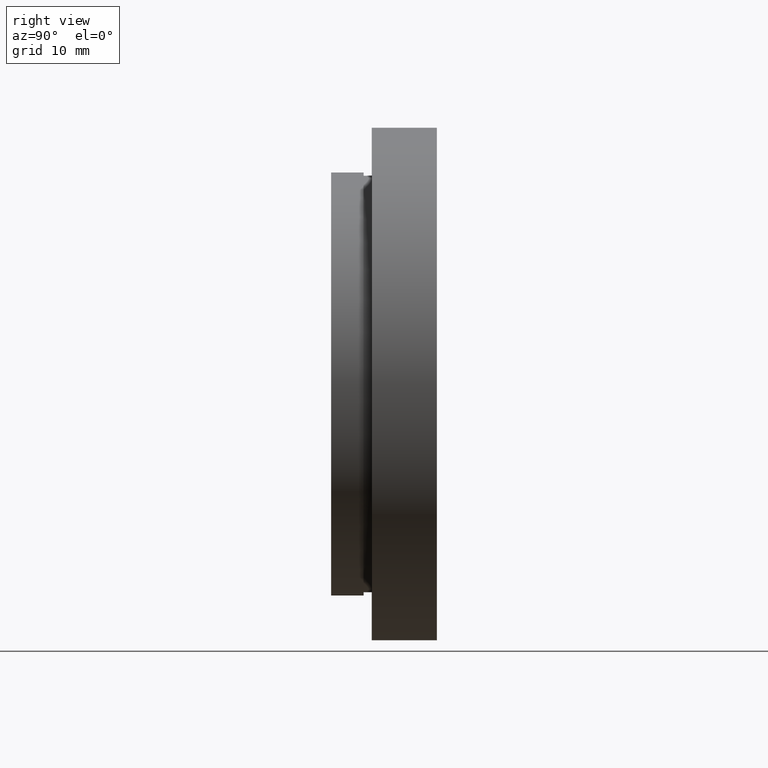
[diagram: clean part render]
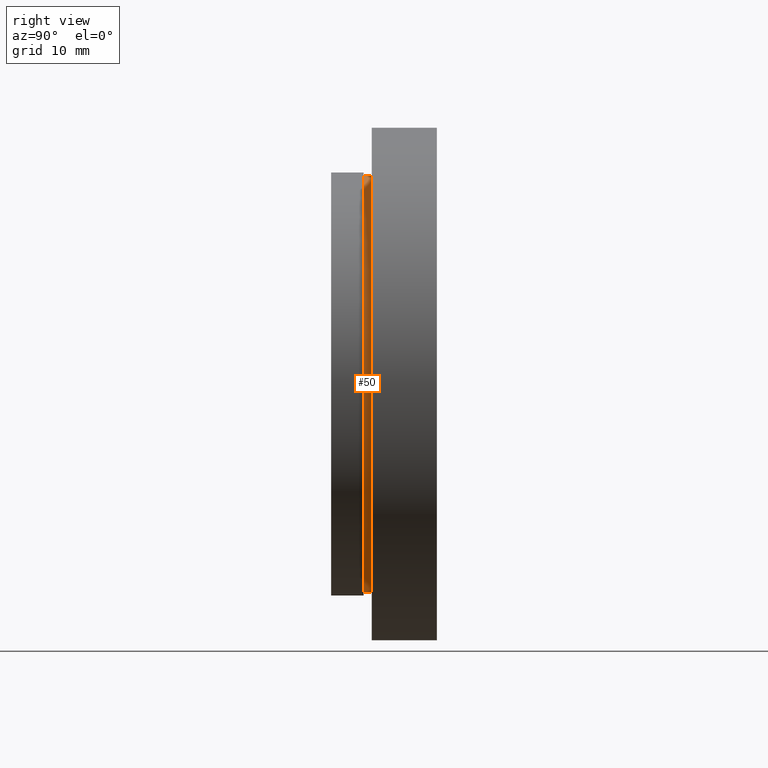
[diagram: same view with one face highlighted and labeled with its STEP entity id]
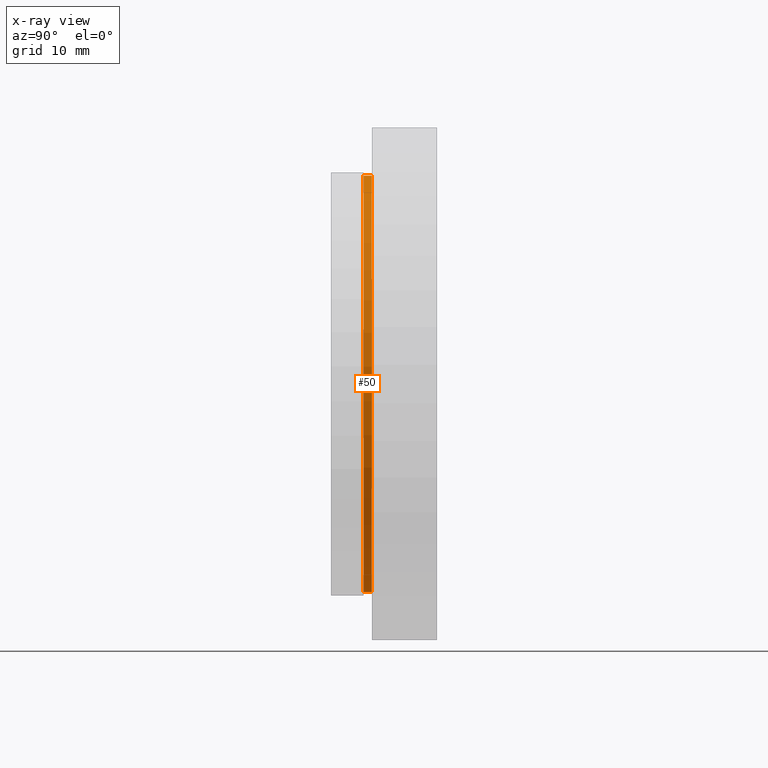
[diagram: x-ray of the same camera — body ghosted, the highlighted face saturated]
A machine part, right view. The second image highlights one B-rep face of the part: STEP entity #50.
The next image is the same camera in x-ray: the body ghosted, the highlighted face saturated — about 0% of this face is hidden behind the body in this view.
In plain terms, the highlighted cylindrical surface (partial cylindrical patch) has radius 25.6 mm, axis along (-0, -1, -0).
Its self-contained STEP definition (entity closure, byte-faithful):
#23 = CARTESIAN_POINT ( 'NONE',  ( 3.135095805817224400E-015, -4.003278688524598100, 25.60000000000000100 ) ) ;
#50 = ADVANCED_FACE ( 'NONE', ( #868 ), #726, .T. ) ;
#56 = EDGE_CURVE ( 'NONE', #870, #728, #1202, .T. ) ;
#62 = CARTESIAN_POINT ( 'NONE',  ( 0.0000000000000000000, -4.003278688524598100, -25.60000000000000100 ) ) ;
#68 = DIRECTION ( 'NONE',  ( -0.0000000000000000000, -1.000000000000000000, -0.0000000000000000000 ) ) ;
#95 = AXIS2_PLACEMENT_3D ( 'NONE', #809, #1090, #153 ) ;
#152 = CARTESIAN_POINT ( 'NONE',  ( 0.0000000000000000000, 0.0000000000000000000, -25.60000000000000100 ) ) ;
#153 = DIRECTION ( 'NONE',  ( 0.0000000000000000000, 0.0000000000000000000, -1.000000000000000000 ) ) ;
#203 = CARTESIAN_POINT ( 'NONE',  ( 3.135095805817224400E-015, 0.0000000000000000000, 25.60000000000000100 ) ) ;
#221 = CARTESIAN_POINT ( 'NONE',  ( 0.0000000000000000000, -5.003278688524598100, 0.0000000000000000000 ) ) ;
#230 = EDGE_CURVE ( 'NONE', #1053, #299, #292, .T. ) ;
#284 = VECTOR ( 'NONE', #333, 1000.000000000000000 ) ;
#292 = LINE ( 'NONE', #203, #787 ) ;
#299 = VERTEX_POINT ( 'NONE', #680 ) ;
#305 = DIRECTION ( 'NONE',  ( -0.0000000000000000000, -1.000000000000000000, -0.0000000000000000000 ) ) ;
#333 = DIRECTION ( 'NONE',  ( -0.0000000000000000000, -1.000000000000000000, -0.0000000000000000000 ) ) ;
#363 = EDGE_LOOP ( 'NONE', ( #900, #657, #1081, #470 ) ) ;
#470 = ORIENTED_EDGE ( 'NONE', *, *, #56, .F. ) ;
#591 = AXIS2_PLACEMENT_3D ( 'NONE', #1082, #68, #978 ) ;
#657 = ORIENTED_EDGE ( 'NONE', *, *, #230, .T. ) ;
#669 = AXIS2_PLACEMENT_3D ( 'NONE', #221, #305, #1153 ) ;
#680 = CARTESIAN_POINT ( 'NONE',  ( 3.135095805817224400E-015, -5.003278688524598100, 25.60000000000000100 ) ) ;
#687 = DIRECTION ( 'NONE',  ( -0.0000000000000000000, -1.000000000000000000, -0.0000000000000000000 ) ) ;
#688 = CIRCLE ( 'NONE', #669, 25.60000000000000100 ) ;
#726 = CYLINDRICAL_SURFACE ( 'NONE', #591, 25.60000000000000100 ) ;
#728 = VERTEX_POINT ( 'NONE', #1062 ) ;
#776 = EDGE_CURVE ( 'NONE', #728, #299, #688, .T. ) ;
#787 = VECTOR ( 'NONE', #687, 1000.000000000000000 ) ;
#809 = CARTESIAN_POINT ( 'NONE',  ( 0.0000000000000000000, -4.003278688524598100, 0.0000000000000000000 ) ) ;
#823 = EDGE_CURVE ( 'NONE', #870, #1053, #996, .T. ) ;
#868 = FACE_OUTER_BOUND ( 'NONE', #363, .T. ) ;
#870 = VERTEX_POINT ( 'NONE', #62 ) ;
#900 = ORIENTED_EDGE ( 'NONE', *, *, #823, .T. ) ;
#978 = DIRECTION ( 'NONE',  ( 0.0000000000000000000, 0.0000000000000000000, -1.000000000000000000 ) ) ;
#996 = CIRCLE ( 'NONE', #95, 25.60000000000000100 ) ;
#1053 = VERTEX_POINT ( 'NONE', #23 ) ;
#1062 = CARTESIAN_POINT ( 'NONE',  ( 0.0000000000000000000, -5.003278688524598100, -25.60000000000000100 ) ) ;
#1081 = ORIENTED_EDGE ( 'NONE', *, *, #776, .F. ) ;
#1082 = CARTESIAN_POINT ( 'NONE',  ( 0.0000000000000000000, 0.0000000000000000000, 0.0000000000000000000 ) ) ;
#1090 = DIRECTION ( 'NONE',  ( -0.0000000000000000000, -1.000000000000000000, -0.0000000000000000000 ) ) ;
#1153 = DIRECTION ( 'NONE',  ( 0.0000000000000000000, 0.0000000000000000000, -1.000000000000000000 ) ) ;
#1202 = LINE ( 'NONE', #152, #284 ) ;